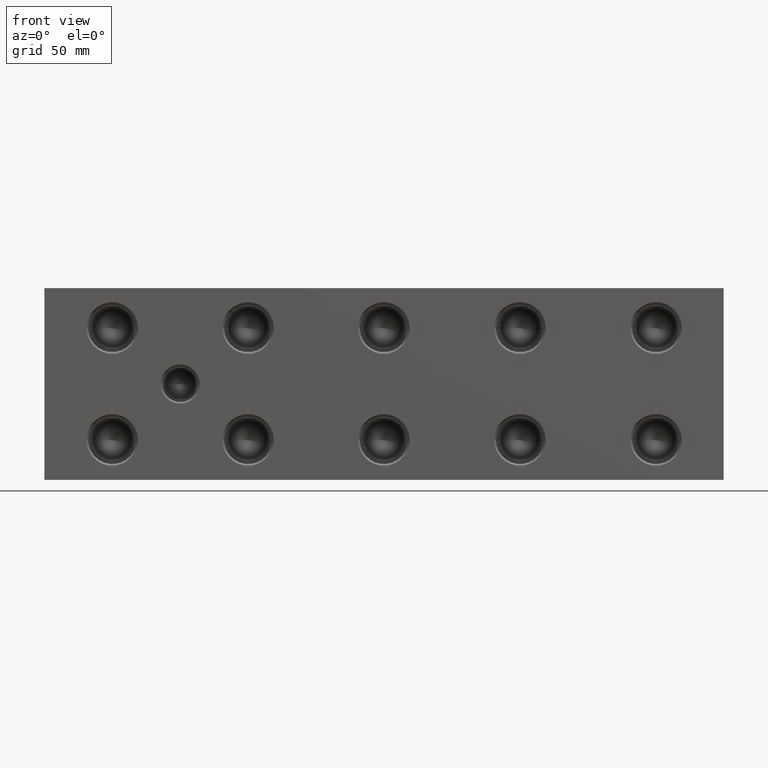
[diagram: clean part render]
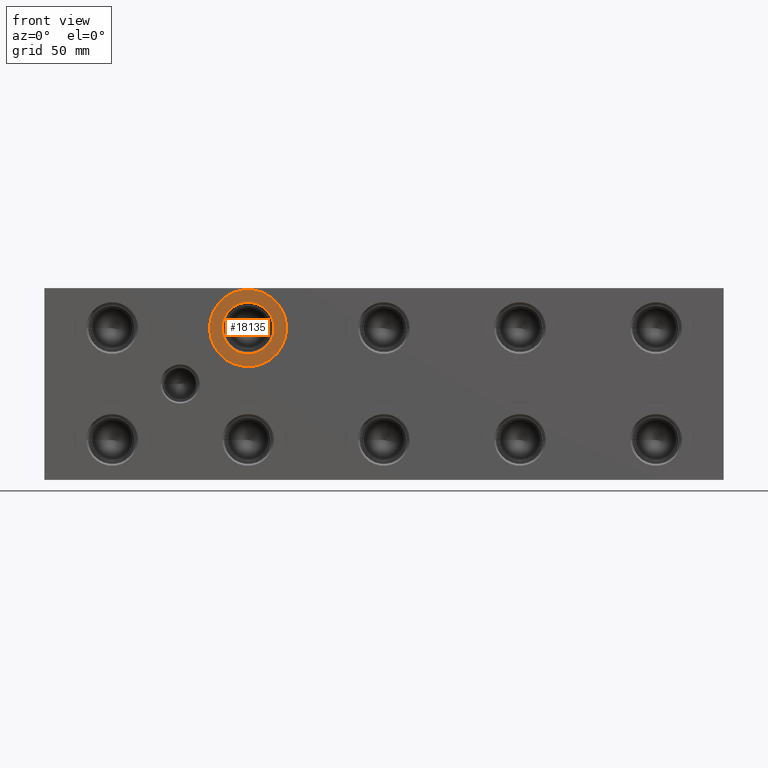
[diagram: same view with one face highlighted and labeled with its STEP entity id]
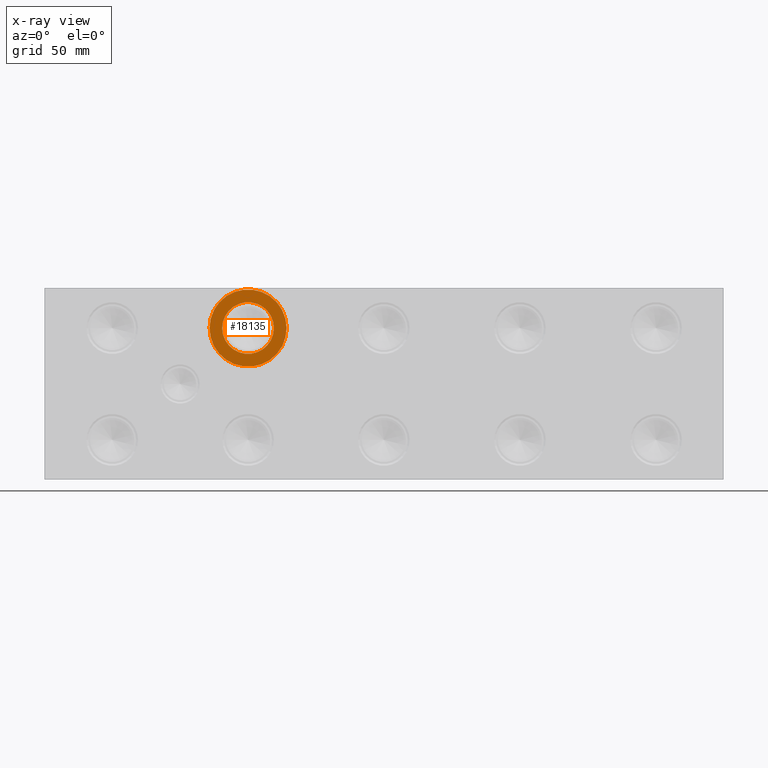
[diagram: x-ray of the same camera — body ghosted, the highlighted face saturated]
A machine part, front view. The second image highlights one B-rep face of the part: STEP entity #18135.
The next image is the same camera in x-ray: the body ghosted, the highlighted face saturated — about 0% of this face is hidden behind the body in this view.
In plain terms, the highlighted planar face has unit normal (0, 1, 0).
Its self-contained STEP definition (entity closure, byte-faithful):
#506=CIRCLE('',#19108,15.3162);
#507=CIRCLE('',#19109,15.3162);
#508=CIRCLE('',#19111,10.2997);
#509=CIRCLE('',#19112,10.2997);
#964=FACE_BOUND('',#3513,.T.);
#2453=FACE_OUTER_BOUND('',#3512,.T.);
#3512=EDGE_LOOP('',(#15222,#15223));
#3513=EDGE_LOOP('',(#15224,#15225));
#8243=VERTEX_POINT('',#30877);
#8244=VERTEX_POINT('',#30879);
#8245=VERTEX_POINT('',#30883);
#8246=VERTEX_POINT('',#30884);
#10678=EDGE_CURVE('',#8243,#8244,#506,.T.);
#10679=EDGE_CURVE('',#8244,#8243,#507,.T.);
#10680=EDGE_CURVE('',#8245,#8246,#508,.T.);
#10681=EDGE_CURVE('',#8246,#8245,#509,.T.);
#15222=ORIENTED_EDGE('',*,*,#10679,.F.);
#15223=ORIENTED_EDGE('',*,*,#10678,.F.);
#15224=ORIENTED_EDGE('',*,*,#10680,.T.);
#15225=ORIENTED_EDGE('',*,*,#10681,.T.);
#16752=PLANE('',#19110);
#18135=ADVANCED_FACE('',(#2453,#964),#16752,.F.);
#19108=AXIS2_PLACEMENT_3D('',#30880,#22519,#22520);
#19109=AXIS2_PLACEMENT_3D('',#30881,#22521,#22522);
#19110=AXIS2_PLACEMENT_3D('',#30882,#22523,#22524);
#19111=AXIS2_PLACEMENT_3D('',#30885,#22525,#22526);
#19112=AXIS2_PLACEMENT_3D('',#30886,#22527,#22528);
#22519=DIRECTION('center_axis',(0.,1.,0.));
#22520=DIRECTION('ref_axis',(1.,0.,0.));
#22521=DIRECTION('center_axis',(0.,1.,0.));
#22522=DIRECTION('ref_axis',(1.,0.,0.));
#22523=DIRECTION('center_axis',(0.,1.,0.));
#22524=DIRECTION('ref_axis',(0.,0.,1.));
#22525=DIRECTION('center_axis',(0.,1.,0.));
#22526=DIRECTION('ref_axis',(1.,0.,0.));
#22527=DIRECTION('center_axis',(0.,1.,0.));
#22528=DIRECTION('ref_axis',(1.,0.,0.));
#30877=CARTESIAN_POINT('',(65.659,0.7874,60.325));
#30879=CARTESIAN_POINT('',(96.2914,0.7874,60.325));
#30880=CARTESIAN_POINT('Origin',(80.9752,0.7874,60.325));
#30881=CARTESIAN_POINT('Origin',(80.9752,0.7874,60.325));
#30882=CARTESIAN_POINT('Origin',(91.2749,0.7874,60.325));
#30883=CARTESIAN_POINT('',(91.2749,0.7874,60.325));
#30884=CARTESIAN_POINT('',(70.6755,0.7874,60.325));
#30885=CARTESIAN_POINT('Origin',(80.9752,0.7874,60.325));
#30886=CARTESIAN_POINT('Origin',(80.9752,0.7874,60.325));